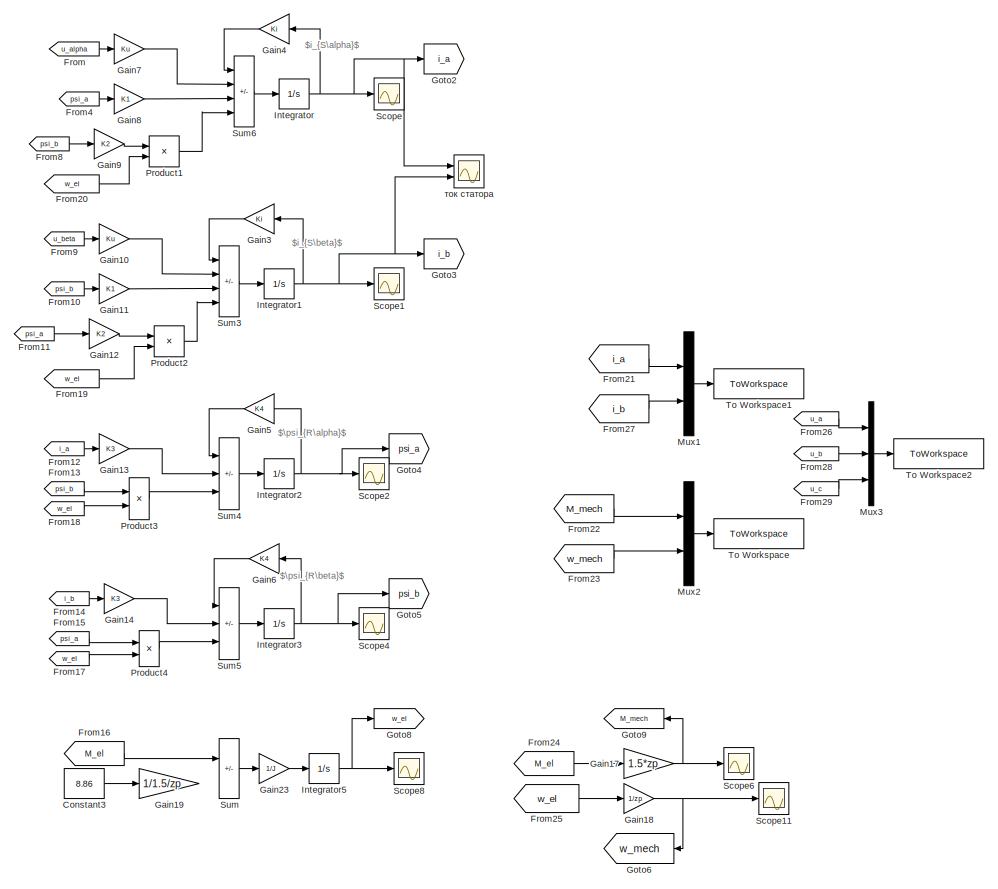
[diagram: root canvas - part 1/2, right side, full height]
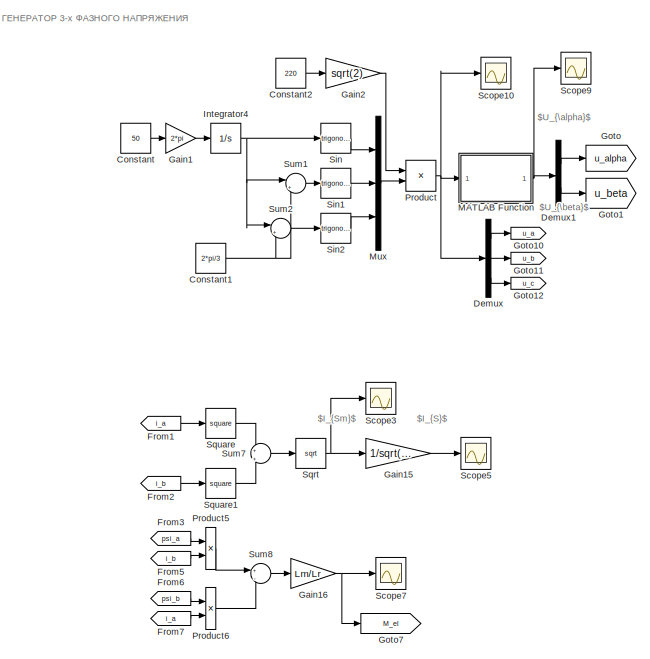
[diagram: root canvas - part 2/2, middle left region]
MODEL slx_7b4e96ba1437
KIND model
CONFIG AbsTol = auto
CONFIG EnableMultiTasking = off
CONFIG FixedStep = 1e-4
CONFIG MaxStep = 0.001
CONFIG MinStep = auto
CONFIG RelTol = 1e-3
CONFIG SampleTimeConstraint = Unconstrained
CONFIG SolverName = ode3
CONFIG StartTime = 0.0
CONFIG StopTime = 1
BLOCK [Constant] Constant
  Value = 50
BLOCK [Constant] Constant1
  Value = 2*pi/3
BLOCK [Constant] Constant2
  Value = 220
BLOCK [Constant] Constant3
  Value = 8.86
BLOCK [Demux] Demux
  Outputs = 3
  Ports = [1, 3]
BLOCK [Demux] Demux1
  Outputs = 2
  Ports = [1, 2]
BLOCK [From] From
  GotoTag = u_alpha
BLOCK [From] From1
  GotoTag = i_a
BLOCK [From] From10
  GotoTag = psi_b
BLOCK [From] From11
  GotoTag = psi_a
BLOCK [From] From12
  GotoTag = i_a
BLOCK [From] From13
  GotoTag = psi_b
BLOCK [From] From14
  GotoTag = i_b
BLOCK [From] From15
  GotoTag = psi_a
BLOCK [From] From16
  GotoTag = M_el
BLOCK [From] From17
  GotoTag = w_el
BLOCK [From] From18
  GotoTag = w_el
BLOCK [From] From19
  GotoTag = w_el
BLOCK [From] From2
  GotoTag = i_b
BLOCK [From] From20
  GotoTag = w_el
BLOCK [From] From21
  GotoTag = i_a
BLOCK [From] From22
  GotoTag = M_mech
BLOCK [From] From23
  GotoTag = w_mech
BLOCK [From] From24
  GotoTag = M_el
BLOCK [From] From25
  GotoTag = w_el
BLOCK [From] From26
  GotoTag = u_a
BLOCK [From] From27
  GotoTag = i_b
BLOCK [From] From28
  GotoTag = u_b
BLOCK [From] From29
  GotoTag = u_c
BLOCK [From] From3
  GotoTag = psi_a
BLOCK [From] From4
  GotoTag = psi_a
BLOCK [From] From5
  GotoTag = i_b
BLOCK [From] From6
  GotoTag = psi_b
BLOCK [From] From7
  GotoTag = i_a
BLOCK [From] From8
  GotoTag = psi_b
BLOCK [From] From9
  GotoTag = u_beta
BLOCK [Gain] Gain1
  Gain = 2*pi
BLOCK [Gain] Gain10
  Gain = Ku
BLOCK [Gain] Gain11
  Gain = K1
BLOCK [Gain] Gain12
  Gain = K2
BLOCK [Gain] Gain13
  Gain = K3
BLOCK [Gain] Gain14
  Gain = K3
BLOCK [Gain] Gain15
  Gain = 1/sqrt(2)
BLOCK [Gain] Gain16
  Gain = Lm/Lr
BLOCK [Gain] Gain17
  Gain = 1.5*zp
BLOCK [Gain] Gain18
  Gain = 1/zp
BLOCK [Gain] Gain19
  Gain = 1/1.5/zp
BLOCK [Gain] Gain2
  Gain = sqrt(2)
BLOCK [Gain] Gain23
  Gain = 1/J
BLOCK [Gain] Gain3
  Gain = Ki
  NameLocation = top
BLOCK [Gain] Gain4
  Gain = Ki
  NameLocation = top
BLOCK [Gain] Gain5
  Gain = K4
  NameLocation = top
BLOCK [Gain] Gain6
  Gain = K4
  NameLocation = top
BLOCK [Gain] Gain7
  Gain = Ku
BLOCK [Gain] Gain8
  Gain = K1
BLOCK [Gain] Gain9
  Gain = K2
BLOCK [Goto] Goto
  GotoTag = u_alpha
BLOCK [Goto] Goto1
  GotoTag = u_beta
BLOCK [Goto] Goto10
  GotoTag = u_a
BLOCK [Goto] Goto11
  GotoTag = u_b
BLOCK [Goto] Goto12
  GotoTag = u_c
BLOCK [Goto] Goto2
  GotoTag = i_a
BLOCK [Goto] Goto3
  GotoTag = i_b
BLOCK [Goto] Goto4
  GotoTag = psi_a
BLOCK [Goto] Goto5
  GotoTag = psi_b
BLOCK [Goto] Goto6
  GotoTag = w_mech
  NameLocation = top
BLOCK [Goto] Goto7
  GotoTag = M_el
BLOCK [Goto] Goto8
  GotoTag = w_el
BLOCK [Goto] Goto9
  GotoTag = M_mech
  NameLocation = top
BLOCK [Integrator] Integrator
  Ports = [1, 1]
BLOCK [Integrator] Integrator1
  Ports = [1, 1]
BLOCK [Integrator] Integrator2
  Ports = [1, 1]
BLOCK [Integrator] Integrator3
  Ports = [1, 1]
BLOCK [Integrator] Integrator4
  Ports = [1, 1]
BLOCK [Integrator] Integrator5
  Ports = [1, 1]
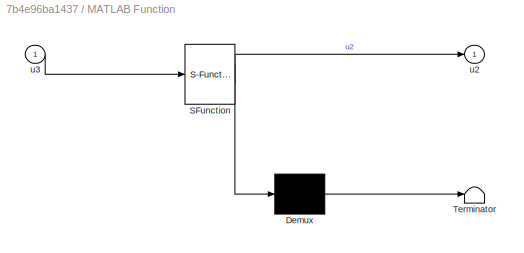
BLOCK [SubSystem] MATLAB Function
  ErrorFcn = Stateflow.Translate.translate
  PermitHierarchicalResolution = ExplicitOnly
  Ports = [1, 1]
  RequestExecContextInheritance = off
  SFBlockType = MATLAB Function
  TreatAsAtomicUnit = on
BLOCK [Demux] MATLAB Function/ Demux 
  Outputs = 1
  Ports = [1, 1]
BLOCK [S-Function] MATLAB Function/ SFunction 
  EnableBusSupport = on
  FunctionName = sf_sfun
  PortCounts = [1 2]
  Ports = [1, 2]
  SFcnIsStateOwnerBlock = off
  SFunctionDeploymentMode = off
  Tag = Stateflow S-Function 2
BLOCK [Terminator] MATLAB Function/ Terminator 
BLOCK [Outport] MATLAB Function/u2
BLOCK [Inport] MATLAB Function/u3
BLOCK [Mux] Mux
  DisplayOption = bar
  Inputs = 3
  Ports = [3, 1]
BLOCK [Mux] Mux1
  DisplayOption = bar
  Inputs = 2
  Ports = [2, 1]
BLOCK [Mux] Mux2
  DisplayOption = bar
  Inputs = 2
  Ports = [2, 1]
BLOCK [Mux] Mux3
  DisplayOption = bar
  Inputs = 3
  Ports = [3, 1]
BLOCK [Product] Product
  Ports = [2, 1]
BLOCK [Product] Product1
  Ports = [2, 1]
BLOCK [Product] Product2
  Ports = [2, 1]
BLOCK [Product] Product3
  Ports = [2, 1]
BLOCK [Product] Product4
  Ports = [2, 1]
BLOCK [Product] Product5
  Ports = [2, 1]
BLOCK [Product] Product6
  Ports = [2, 1]
BLOCK [Scope] Scope
  Floating = off
  NumInputPorts = 1
  Ports = [1]
  ScopeSpecificationString = Simulink.scopes.TimeScopeBlockCfg('CurrentConfiguration', extmgr.ConfigurationSet(extmgr.Configuration('Core','General UI',true),extmgr.Configuration('Core','Source UI',true),extmgr.Configuration('Sources','WiredSimulink',true),extmgr.Configuration('Visuals','Time Domain',true,'SerializedDisplays',{struct('MinYLimReal','-0.03195','MaxYLimReal','0.03157','YLabelReal','','MinYLimMag','0.00000','MaxY...<+1355ch>
BLOCK [Scope] Scope1
  Floating = off
  NumInputPorts = 1
  Ports = [1]
  ScopeSpecificationString = Simulink.scopes.TimeScopeBlockCfg('CurrentConfiguration', extmgr.ConfigurationSet(extmgr.Configuration('Core','General UI',true),extmgr.Configuration('Core','Source UI',true),extmgr.Configuration('Sources','WiredSimulink',true,'DataLoggingVariableName','ScopeData1'),extmgr.Configuration('Visuals','Time Domain',true,'SerializedDisplays',{struct('MinYLimReal','-0.02676','MaxYLimReal','0.0346','YLabe...<+1366ch>
BLOCK [Scope] Scope10
  Floating = off
  NumInputPorts = 1
  Ports = [1]
  ScopeSpecificationString = Simulink.scopes.TimeScopeBlockCfg('CurrentConfiguration', extmgr.ConfigurationSet(extmgr.Configuration('Core','General UI',true),extmgr.Configuration('Core','Source UI',true),extmgr.Configuration('Sources','WiredSimulink',true,'DataLoggingVariableName','ScopeData1'),extmgr.Configuration('Visuals','Time Domain',true,'SerializedDisplays',{struct('MinYLimReal','-388.90873','MaxYLimReal','388.90873','...<+1494ch>
BLOCK [Scope] Scope11
  Floating = off
  NumInputPorts = 1
  Ports = [1]
  ScopeSpecificationString = Simulink.scopes.TimeScopeBlockCfg('CurrentConfiguration', extmgr.ConfigurationSet(extmgr.Configuration('Core','General UI',true,'FigureColor',[1 1 1]),extmgr.Configuration('Core','Source UI',true),extmgr.Configuration('Sources','WiredSimulink',true,'DataLoggingVariableName','ScopeData2'),extmgr.Configuration('Visuals','Time Domain',true,'SerializedDisplays',{struct('MinYLimReal','-13.08997','MaxYL...<+1571ch>
BLOCK [Scope] Scope2
  Floating = off
  NumInputPorts = 1
  Ports = [1]
  ScopeSpecificationString = Simulink.scopes.TimeScopeBlockCfg('CurrentConfiguration', extmgr.ConfigurationSet(extmgr.Configuration('Core','General UI',true),extmgr.Configuration('Core','Source UI',true),extmgr.Configuration('Sources','WiredSimulink',true,'DataLoggingVariableName','ScopeData2'),extmgr.Configuration('Visuals','Time Domain',true,'SerializedDisplays',{struct('MinYLimReal','-0.00359','MaxYLimReal','0.00362','YLab...<+1370ch>
BLOCK [Scope] Scope3
  Floating = off
  NumInputPorts = 1
  Ports = [1]
  ScopeSpecificationString = Simulink.scopes.TimeScopeBlockCfg('CurrentConfiguration', extmgr.ConfigurationSet(extmgr.Configuration('Core','General UI',true),extmgr.Configuration('Core','Source UI',true),extmgr.Configuration('Sources','WiredSimulink',true,'DataLoggingVariableName','ScopeData1'),extmgr.Configuration('Visuals','Time Domain',true,'SerializedDisplays',{struct('MinYLimReal','-0.0037','MaxYLimReal','0.03333','YLabe...<+1401ch>
BLOCK [Scope] Scope4
  Floating = off
  NumInputPorts = 1
  Ports = [1]
  ScopeSpecificationString = Simulink.scopes.TimeScopeBlockCfg('CurrentConfiguration', extmgr.ConfigurationSet(extmgr.Configuration('Core','General UI',true),extmgr.Configuration('Core','Source UI',true),extmgr.Configuration('Sources','WiredSimulink',true,'DataLoggingVariableName','ScopeData4'),extmgr.Configuration('Visuals','Time Domain',true,'SerializedDisplays',{struct('MinYLimReal','-0.00259','MaxYLimReal','0.00389','YLab...<+1370ch>
BLOCK [Scope] Scope5
  Floating = off
  NumInputPorts = 1
  Ports = [1]
  ScopeSpecificationString = Simulink.scopes.TimeScopeBlockCfg('CurrentConfiguration', extmgr.ConfigurationSet(extmgr.Configuration('Core','General UI',true),extmgr.Configuration('Core','Source UI',true),extmgr.Configuration('Sources','WiredSimulink',true,'DataLoggingVariableName','ScopeData2'),extmgr.Configuration('Visuals','Time Domain',true,'SerializedDisplays',{struct('MinYLimReal','-0.00262','MaxYLimReal','0.02357','YLab...<+1409ch>
BLOCK [Scope] Scope6
  Floating = off
  NumInputPorts = 1
  Ports = [1]
  ScopeSpecificationString = Simulink.scopes.TimeScopeBlockCfg('CurrentConfiguration', extmgr.ConfigurationSet(extmgr.Configuration('Core','General UI',true,'FigureColor',[1 1 1]),extmgr.Configuration('Core','Source UI',true),extmgr.Configuration('Sources','WiredSimulink',true,'DataLoggingVariableName','ScopeData1'),extmgr.Configuration('Visuals','Time Domain',true,'SerializedDisplays',{struct('MinYLimReal','-3.43397','MaxYLi...<+1565ch>
BLOCK [Scope] Scope7
  Floating = off
  NumInputPorts = 1
  Ports = [1]
  ScopeSpecificationString = Simulink.scopes.TimeScopeBlockCfg('CurrentConfiguration', extmgr.ConfigurationSet(extmgr.Configuration('Core','General UI',true),extmgr.Configuration('Core','Source UI',true),extmgr.Configuration('Sources','WiredSimulink',true,'DataLoggingVariableName','ScopeData4'),extmgr.Configuration('Visuals','Time Domain',true,'SerializedDisplays',{struct('MinYLimReal','-6.49224','MaxYLimReal','41.10436','YLa...<+1442ch>
BLOCK [Scope] Scope8
  Floating = off
  NumInputPorts = 1
  Ports = [1]
  ScopeSpecificationString = Simulink.scopes.TimeScopeBlockCfg('CurrentConfiguration', extmgr.ConfigurationSet(extmgr.Configuration('Core','General UI',true,'FigureColor',[1 1 1]),extmgr.Configuration('Core','Source UI',true),extmgr.Configuration('Sources','WiredSimulink',true,'DataLoggingVariableName','ScopeData5'),extmgr.Configuration('Visuals','Time Domain',true,'SerializedDisplays',{struct('MinYLimReal','-39.26991','MaxYL...<+1576ch>
BLOCK [Scope] Scope9
  Floating = off
  NumInputPorts = 1
  Ports = [1]
  ScopeSpecificationString = Simulink.scopes.TimeScopeBlockCfg('CurrentConfiguration', extmgr.ConfigurationSet(extmgr.Configuration('Core','General UI',true),extmgr.Configuration('Core','Source UI',true),extmgr.Configuration('Sources','WiredSimulink',true,'DataLoggingVariableName','ScopeData1'),extmgr.Configuration('Visuals','Time Domain',true,'SerializedDisplays',{struct('MinYLimReal','-388.90873','MaxYLimReal','388.90873','...<+1498ch>
BLOCK [Trigonometry] Sin
  Ports = [1, 1]
BLOCK [Trigonometry] Sin1
  Ports = [1, 1]
BLOCK [Trigonometry] Sin2
  Ports = [1, 1]
BLOCK [Sqrt] Sqrt
BLOCK [Math] Square
  Operator = square
  Ports = [1, 1]
BLOCK [Math] Square1
  Operator = square
  Ports = [1, 1]
BLOCK [Sum] Sum
  IconShape = rectangular
  Inputs = +-
  Ports = [2, 1]
BLOCK [Sum] Sum1
  Inputs = |+-
  Ports = [2, 1]
BLOCK [Sum] Sum2
  Inputs = |++
  Ports = [2, 1]
BLOCK [Sum] Sum3
  IconShape = rectangular
  Inputs = -++-
  Ports = [4, 1]
BLOCK [Sum] Sum4
  IconShape = rectangular
  Inputs = -+-
  Ports = [3, 1]
BLOCK [Sum] Sum5
  IconShape = rectangular
  Inputs = -++
  Ports = [3, 1]
BLOCK [Sum] Sum6
  IconShape = rectangular
  Inputs = -+++
  Ports = [4, 1]
BLOCK [Sum] Sum7
  Inputs = +|+
  Ports = [2, 1]
BLOCK [Sum] Sum8
  Inputs = +|-
  Ports = [2, 1]
BLOCK [ToWorkspace] To Workspace
  FixptAsFi = on
  MaxDataPoints = inf
  Ports = [1]
  SampleTime = -1
  SaveFormat = Timeseries
  VariableName = mechanic
BLOCK [ToWorkspace] To Workspace1
  FixptAsFi = on
  MaxDataPoints = inf
  Ports = [1]
  SampleTime = -1
  SaveFormat = Timeseries
  VariableName = electric
BLOCK [ToWorkspace] To Workspace2
  FixptAsFi = on
  MaxDataPoints = inf
  Ports = [1]
  SampleTime = -1
  SaveFormat = Timeseries
  VariableName = U
BLOCK [Scope] ток статора
  Floating = off
  NumInputPorts = 2
  Ports = [2]
  ScopeSpecificationString = Simulink.scopes.TimeScopeBlockCfg('CurrentConfiguration', extmgr.ConfigurationSet(extmgr.Configuration('Core','General UI',true,'FigureColor',[1 1 1]),extmgr.Configuration('Core','Source UI',true),extmgr.Configuration('Sources','WiredSimulink',true,'DataLoggingVariableName','ScopeData1'),extmgr.Configuration('Visuals','Time Domain',true,'SerializedDisplays',{struct('MinYLimReal','-13.0754','MaxYLi...<+1698ch>
ANNOTATION (root): ГЕНЕРАТОР 3-х ФАЗНОГО НАПРЯЖЕНИЯ
ANNOTATION (root): $I_{Sm}$
ANNOTATION (root): $I_{S}$
ANNOTATION (root): $U_{\alpha}$
ANNOTATION (root): $U_{\beta}$
ANNOTATION (root): $\psi_{R\alpha}$
ANNOTATION (root): $\psi_{R\beta}$
ANNOTATION (root): $i_{S\alpha}$
ANNOTATION (root): $i_{S\beta}$
NET Constant1:1 -> Sum1:2, Sum2:2
LINE Constant2:1 -> Gain2:1
LINE Constant3:1 -> Gain19:1
LINE Constant:1 -> Gain1:1
LINE Demux1:1 -> Goto:1
LINE Demux1:2 -> Goto1:1
LINE Demux:1 -> Goto10:1
LINE Demux:2 -> Goto11:1
LINE Demux:3 -> Goto12:1
LINE From10:1 -> Gain11:1
LINE From11:1 -> Gain12:1
LINE From12:1 -> Gain13:1
LINE From13:1 -> Product3:1
LINE From14:1 -> Gain14:1
LINE From15:1 -> Product4:1
LINE From16:1 -> Sum:1
LINE From17:1 -> Product4:2
LINE From18:1 -> Product3:2
LINE From19:1 -> Product2:2
LINE From1:1 -> Square:1
LINE From20:1 -> Product1:2
LINE From21:1 -> Mux1:1
LINE From22:1 -> Mux2:1
LINE From23:1 -> Mux2:2
LINE From24:1 -> Gain17:1
LINE From25:1 -> Gain18:1
LINE From26:1 -> Mux3:1
LINE From27:1 -> Mux1:2
LINE From28:1 -> Mux3:2
LINE From29:1 -> Mux3:3
LINE From2:1 -> Square1:1
LINE From3:1 -> Product5:1
LINE From4:1 -> Gain8:1
LINE From5:1 -> Product5:2
LINE From6:1 -> Product6:1
LINE From7:1 -> Product6:2
LINE From8:1 -> Gain9:1
LINE From9:1 -> Gain10:1
LINE From:1 -> Gain7:1
LINE Gain10:1 -> Sum3:2
LINE Gain11:1 -> Sum3:3
LINE Gain12:1 -> Product2:1
LINE Gain13:1 -> Sum4:2
LINE Gain14:1 -> Sum5:2
LINE Gain15:1 -> Scope5:1
NET Gain16:1 -> Goto7:1, Scope7:1
NET Gain17:1 -> Goto9:1, Scope6:1
NET Gain18:1 -> Goto6:1, Scope11:1
LINE Gain1:1 -> Integrator4:1
LINE Gain23:1 -> Integrator5:1
LINE Gain2:1 -> Product:1
LINE Gain3:1 -> Sum3:1
LINE Gain4:1 -> Sum6:1
LINE Gain5:1 -> Sum4:1
LINE Gain6:1 -> Sum5:1
LINE Gain7:1 -> Sum6:2
LINE Gain8:1 -> Sum6:3
LINE Gain9:1 -> Product1:1
NET Integrator1:1 -> Gain3:1, Goto3:1, Scope1:1, ток статора:2
NET Integrator2:1 -> Gain5:1, Goto4:1, Scope2:1
NET Integrator3:1 -> Gain6:1, Goto5:1, Scope4:1
NET Integrator4:1 -> Sin:1, Sum1:1, Sum2:1
NET Integrator5:1 -> Goto8:1, Scope8:1
NET Integrator:1 -> Gain4:1, Goto2:1, Scope:1, ток статора:1
NET MATLAB Function:1 -> Demux1:1, Scope9:1
LINE Mux1:1 -> To Workspace1:1
LINE Mux2:1 -> To Workspace:1
LINE Mux3:1 -> To Workspace2:1
LINE Mux:1 -> Product:2
LINE Product1:1 -> Sum6:4
LINE Product2:1 -> Sum3:4
LINE Product3:1 -> Sum4:3
LINE Product4:1 -> Sum5:3
LINE Product5:1 -> Sum8:1
LINE Product6:1 -> Sum8:2
NET Product:1 -> Demux:1, MATLAB Function:1, Scope10:1
LINE Sin1:1 -> Mux:2
LINE Sin2:1 -> Mux:3
LINE Sin:1 -> Mux:1
NET Sqrt:1 -> Gain15:1, Scope3:1
LINE Square1:1 -> Sum7:2
LINE Square:1 -> Sum7:1
LINE Sum1:1 -> Sin1:1
LINE Sum2:1 -> Sin2:1
LINE Sum3:1 -> Integrator1:1
LINE Sum4:1 -> Integrator2:1
LINE Sum5:1 -> Integrator3:1
LINE Sum6:1 -> Integrator:1
LINE Sum7:1 -> Sqrt:1
LINE Sum8:1 -> Gain16:1
LINE Sum:1 -> Gain23:1
note: NET lines group one-source signal fan-out (src -> all destinations, sorted); 1:1 wires keep LINE
CHART MATLAB Function states=1 transitions=1
  STATE_LABEL 'eML_blk_kernel()'
  STATE_LABEL 'SCRIPT:\nfunction u2 = preobrazovat(u3)\n    u2 = [2/3 -(1/3) -(1/3); 0 1/sqrt(3) -1/sqrt(3)] * u3;\nend\n'
CHART  states=0 transitions=0
